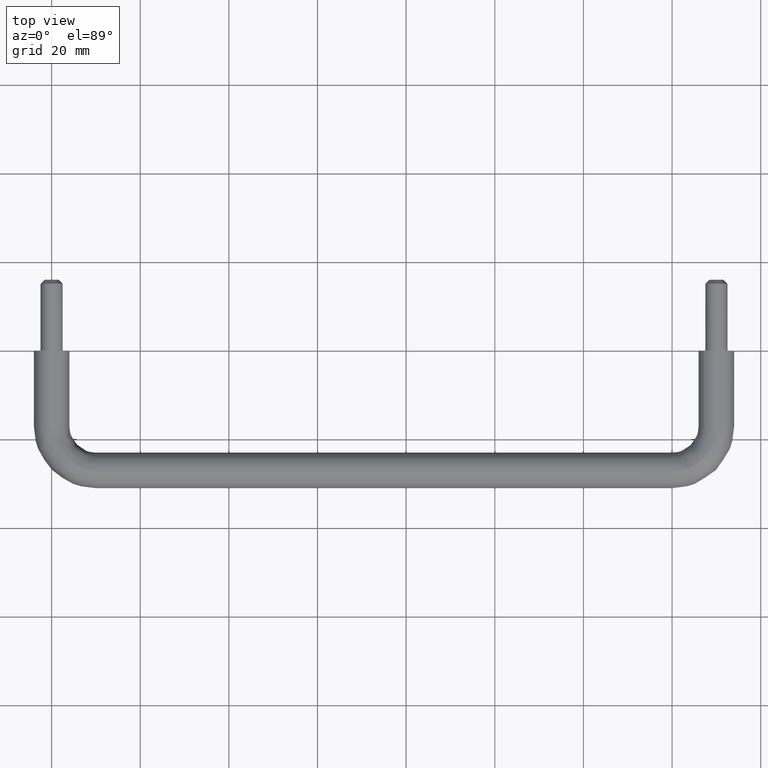
[diagram: clean part render]
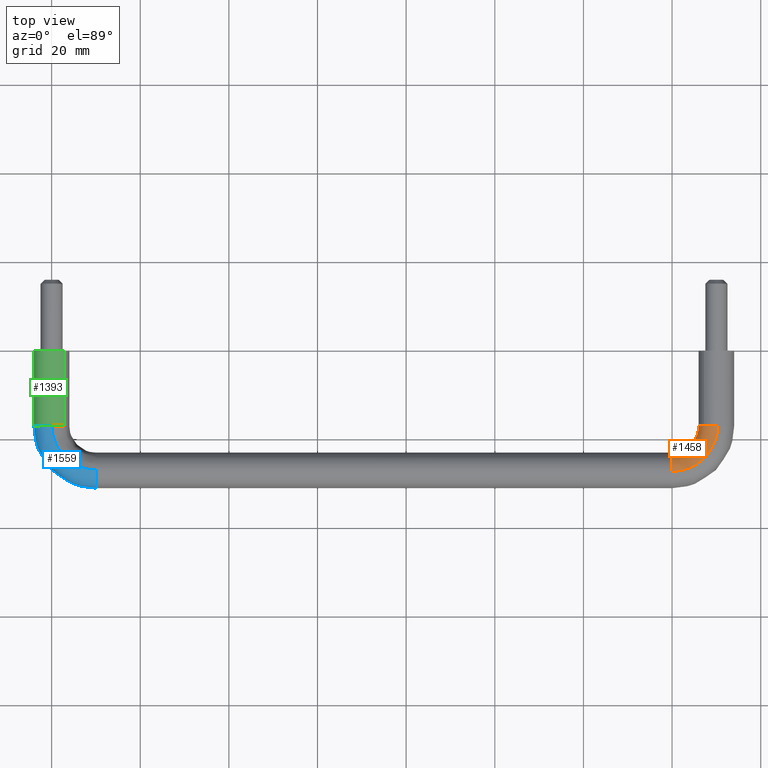
[diagram: same view with three faces highlighted in distinct colors, each labeled with its STEP entity id]
A machine part, top view with three faces highlighted in distinct colors.
Their STEP definitions:

[orange] entity #1458 — the highlighted face is a freeform B-spline surface patch.
#732=CARTESIAN_POINT('',(149.949735840425290,-16.999999999984301,-3.999684176814744));
#733=VERTEX_POINT('',#732);
#749=CARTESIAN_POINT('',(146.0,-17.0,0.0));
#750=VERTEX_POINT('',#749);
#751=CARTESIAN_POINT('',(149.949735840425260,-16.999999999984301,-3.999684176814744));
#752=CARTESIAN_POINT('',(145.999999999999940,-17.0,-3.950047719547630));
#753=CARTESIAN_POINT('',(146.0,-17.0,0.0));
#761=(BOUNDED_CURVE()B_SPLINE_CURVE(2,(#751,#752,#753),.UNSPECIFIED.,.F.,.U.)B_SPLINE_CURVE_WITH_KNOTS((3,3),(0.252215704081906,0.500000000000000),.UNSPECIFIED.)CURVE()GEOMETRIC_REPRESENTATION_ITEM()RATIONAL_B_SPLINE_CURVE((0.994854295635648,0.709702639988498,1.0))REPRESENTATION_ITEM(''));
#762=EDGE_CURVE('',#733,#750,#761,.T.);
#764=CARTESIAN_POINT('',(147.196363281784100,-17.000000000000021,2.853002129734826));
#765=VERTEX_POINT('',#764);
#766=CARTESIAN_POINT('',(146.0,-17.0,0.0));
#767=CARTESIAN_POINT('',(146.000000000000060,-17.000000000000007,1.677339765870804));
#768=CARTESIAN_POINT('',(147.196363281784130,-17.000000000000025,2.853002129734826));
#776=(BOUNDED_CURVE()B_SPLINE_CURVE(2,(#766,#767,#768),.UNSPECIFIED.,.F.,.U.)B_SPLINE_CURVE_WITH_KNOTS((3,3),(0.500000000000000,0.626316793447803),.UNSPECIFIED.)CURVE()GEOMETRIC_REPRESENTATION_ITEM()RATIONAL_B_SPLINE_CURVE((1.0,0.852010671107516,0.853569642136559))REPRESENTATION_ITEM(''));
#777=EDGE_CURVE('',#750,#765,#776,.T.);
#895=CARTESIAN_POINT('',(150.278933189532300,-17.000000005944891,3.990262682553283));
#896=VERTEX_POINT('',#895);
#897=CARTESIAN_POINT('',(147.196363281784100,-17.000000000000021,2.853002129734826));
#898=CARTESIAN_POINT('',(148.363557349100920,-16.999999999999993,4.0));
#899=CARTESIAN_POINT('',(150.0,-17.0,4.0));
#900=CARTESIAN_POINT('',(150.139636647400290,-17.0,4.0));
#901=CARTESIAN_POINT('',(150.278933189532300,-17.000000005944887,3.990262682553283));
#909=(BOUNDED_CURVE()B_SPLINE_CURVE(2,(#897,#898,#899,#900,#901),.UNSPECIFIED.,.F.,.U.)B_SPLINE_CURVE_WITH_KNOTS((3,2,3),(0.626316793447803,0.750000000000000,0.762166329259532),.UNSPECIFIED.)CURVE()GEOMETRIC_REPRESENTATION_ITEM()RATIONAL_B_SPLINE_CURVE((0.853569642136559,0.855096110079032,1.0,0.985746258648125,0.972879842979988))REPRESENTATION_ITEM(''));
#910=EDGE_CURVE('',#765,#896,#909,.T.);
#954=CARTESIAN_POINT('',(140.0,-23.417578029477610,1.779396758769257));
#955=VERTEX_POINT('',#954);
#956=CARTESIAN_POINT('',(140.000000010251710,-27.278933189776939,3.990262682536179));
#957=VERTEX_POINT('',#956);
#958=CARTESIAN_POINT('',(140.000000000000030,-23.417578029477614,1.779396758769256));
#959=CARTESIAN_POINT('',(139.999999999999940,-24.520556473275803,4.0));
#960=CARTESIAN_POINT('',(140.0,-27.0,4.0));
#961=CARTESIAN_POINT('',(139.999999999999970,-27.139636647645887,4.0));
#962=CARTESIAN_POINT('',(140.000000010251650,-27.278933189776939,3.990262682536178));
#970=(BOUNDED_CURVE()B_SPLINE_CURVE(2,(#958,#959,#960,#961,#962),.UNSPECIFIED.,.F.,.U.)B_SPLINE_CURVE_WITH_KNOTS((3,2,3),(0.575619190626044,0.750000000000000,0.762166329280624),.UNSPECIFIED.)CURVE()GEOMETRIC_REPRESENTATION_ITEM()RATIONAL_B_SPLINE_CURVE((0.876408099965181,0.795700173772668,1.0,0.985746258623414,0.972879842935376))REPRESENTATION_ITEM(''));
#971=EDGE_CURVE('',#955,#957,#970,.T.);
#1044=CARTESIAN_POINT('',(140.000000000115700,-24.246582932973361,-2.901498656702296));
#1045=VERTEX_POINT('',#1044);
#1051=CARTESIAN_POINT('',(140.000000000366700,-26.949735840281949,-3.999684176812943));
#1052=VERTEX_POINT('',#1051);
#1053=CARTESIAN_POINT('',(140.000000000366700,-26.949735840281949,-3.999684176812943));
#1054=CARTESIAN_POINT('',(140.000000000221290,-25.383082967628233,-3.979995999691451));
#1055=CARTESIAN_POINT('',(140.000000000115760,-24.246582932973364,-2.901498656702296));
#1063=(BOUNDED_CURVE()B_SPLINE_CURVE(2,(#1053,#1054,#1055),.UNSPECIFIED.,.F.,.U.)B_SPLINE_CURVE_WITH_KNOTS((3,3),(0.252215704094509,0.371049462387032),.UNSPECIFIED.)CURVE()GEOMETRIC_REPRESENTATION_ITEM()RATIONAL_B_SPLINE_CURVE((0.994854295606640,0.858099693000149,0.853699666128967))REPRESENTATION_ITEM(''));
#1064=EDGE_CURVE('',#1052,#1045,#1063,.T.);
#1113=CARTESIAN_POINT('',(140.0,-23.0,0.0));
#1114=VERTEX_POINT('',#1113);
#1115=CARTESIAN_POINT('',(140.0,-23.0,0.0));
#1116=CARTESIAN_POINT('',(140.000000000000030,-23.000000000000004,0.938695717929676));
#1117=CARTESIAN_POINT('',(139.999999999999940,-23.417578029477614,1.779396758769257));
#1125=(BOUNDED_CURVE()B_SPLINE_CURVE(2,(#1115,#1116,#1117),.UNSPECIFIED.,.F.,.U.)B_SPLINE_CURVE_WITH_KNOTS((3,3),(0.500000000000000,0.575619190626044),.UNSPECIFIED.)CURVE()GEOMETRIC_REPRESENTATION_ITEM()RATIONAL_B_SPLINE_CURVE((1.0,0.911406607413880,0.876408099965182))REPRESENTATION_ITEM(''));
#1126=EDGE_CURVE('',#1114,#955,#1125,.T.);
#1128=CARTESIAN_POINT('',(140.000000000115760,-24.246582932973364,-2.901498656702296));
#1129=CARTESIAN_POINT('',(139.999999999999970,-23.0,-1.718536632860814));
#1130=CARTESIAN_POINT('',(140.0,-23.0,0.0));
#1138=(BOUNDED_CURVE()B_SPLINE_CURVE(2,(#1128,#1129,#1130),.UNSPECIFIED.,.F.,.U.)B_SPLINE_CURVE_WITH_KNOTS((3,3),(0.371049462387032,0.500000000000000),.UNSPECIFIED.)CURVE()GEOMETRIC_REPRESENTATION_ITEM()RATIONAL_B_SPLINE_CURVE((0.853699666128967,0.848925047883251,1.0))REPRESENTATION_ITEM(''));
#1139=EDGE_CURVE('',#1045,#1114,#1138,.T.);
#1394=CARTESIAN_POINT('',(139.285232849516860,-27.254051255058759,3.990262710755871));
#1395=CARTESIAN_POINT('',(151.075932032510790,-28.075931724309864,3.990262710755869));
#1396=CARTESIAN_POINT('',(150.254051235169560,-16.285232564185716,3.990262710755872));
#1397=CARTESIAN_POINT('',(139.293173950873320,-27.140128195953455,3.998245639552521));
#1398=CARTESIAN_POINT('',(150.952877833911630,-27.952877529134813,3.998245639552521));
#1399=CARTESIAN_POINT('',(150.140128176285170,-16.293173668712253,3.998245639552521));
#1400=CARTESIAN_POINT('',(139.301133802077260,-27.025936151492424,3.999684176815264));
#1401=CARTESIAN_POINT('',(150.829533090293410,-27.829532788948779,3.999684176815264));
#1402=CARTESIAN_POINT('',(150.025936132045560,-16.301133523093657,3.999684176815263));
#1403=CARTESIAN_POINT('',(139.579260230315550,-23.035933744954079,4.049948336348676));
#1404=CARTESIAN_POINT('',(146.519724765259780,-23.519724583840723,4.049948336348674));
#1405=CARTESIAN_POINT('',(146.035933733246510,-16.579260062358539,4.049948336348676));
#1406=CARTESIAN_POINT('',(139.582755454073660,-22.985791256538757,0.050264159533411));
#1407=CARTESIAN_POINT('',(146.465563265593520,-23.465563085681516,0.050264159533411));
#1408=CARTESIAN_POINT('',(145.985791244928520,-16.582755287511844,0.050264159533411));
#1409=CARTESIAN_POINT('',(139.586250677831600,-22.935648768123418,-3.949420017281852));
#1410=CARTESIAN_POINT('',(146.411401765927170,-23.411401587522313,-3.949420017281853));
#1411=CARTESIAN_POINT('',(145.935648756610360,-16.586250512665156,-3.949420017281854));
#1412=CARTESIAN_POINT('',(139.308124249593280,-26.925651174661770,-3.999684176815264));
#1413=CARTESIAN_POINT('',(150.721210090960800,-27.721209792630368,-3.999684176815264));
#1414=CARTESIAN_POINT('',(149.925651155409500,-16.308123973400264,-3.999684176815263));
#1422=(BOUNDED_SURFACE()B_SPLINE_SURFACE(2,2,((#1394,#1397,#1400,#1403,#1406,#1409,#1412),(#1395,#1398,#1401,#1404,#1407,#1410,#1413),(#1396,#1399,#1402,#1405,#1408,#1411,#1414)),.UNSPECIFIED.,.F.,.F.,.U.)B_SPLINE_SURFACE_WITH_KNOTS((3,3),(3,2,2,3),(0.0,18.732059002914639),(0.0,0.265096427102886,6.892513425072401,13.519930423041920),.UNSPECIFIED.)GEOMETRIC_REPRESENTATION_ITEM()RATIONAL_B_SPLINE_SURFACE(((0.895729732449210,0.905606490046838,0.916342095240933,0.647951709431553,0.916342095240933,0.647951709431553,0.916342095240933),(0.587800221482116,0.594281596491894,0.601326568744382,0.425202094466791,0.601326568744382,0.425202094466791,0.601326568744382),(0.895729743804760,0.905606501527600,0.916342106857795,0.647951717645915,0.916342106857795,0.647951717645915,0.916342106857795)))REPRESENTATION_ITEM('')SURFACE());
#1423=ORIENTED_EDGE('',*,*,#910,.F.);
#1424=ORIENTED_EDGE('',*,*,#777,.F.);
#1425=ORIENTED_EDGE('',*,*,#762,.F.);
#1426=CARTESIAN_POINT('',(140.000000000366750,-26.949735840281942,-3.999684176812943));
#1427=CARTESIAN_POINT('',(149.949735840497990,-26.949735839733130,-3.999684176815261));
#1428=CARTESIAN_POINT('',(149.949735840425210,-16.999999999984297,-3.999684176814744));
#1436=(BOUNDED_CURVE()B_SPLINE_CURVE(2,(#1426,#1427,#1428),.UNSPECIFIED.,.F.,.U.)B_SPLINE_CURVE_WITH_KNOTS((3,3),(-1.734750791581804,-0.265249208338318),.UNSPECIFIED.)CURVE()GEOMETRIC_REPRESENTATION_ITEM()RATIONAL_B_SPLINE_CURVE((0.889029723549296,0.628638946230295,0.889029723577604))REPRESENTATION_ITEM(''));
#1437=EDGE_CURVE('',#1052,#733,#1436,.T.);
#1438=ORIENTED_EDGE('',*,*,#1437,.F.);
#1439=ORIENTED_EDGE('',*,*,#1064,.T.);
#1440=ORIENTED_EDGE('',*,*,#1139,.T.);
#1441=ORIENTED_EDGE('',*,*,#1126,.T.);
#1442=ORIENTED_EDGE('',*,*,#971,.T.);
#1443=CARTESIAN_POINT('',(140.000000010251630,-27.278933189776939,3.990262682536179));
#1444=CARTESIAN_POINT('',(150.278932994411950,-27.278932985798466,3.990262695361730));
#1445=CARTESIAN_POINT('',(150.278933189532300,-17.000000005944887,3.990262682553283));
#1453=(BOUNDED_CURVE()B_SPLINE_CURVE(2,(#1443,#1444,#1445),.UNSPECIFIED.,.F.,.U.)B_SPLINE_CURVE_WITH_KNOTS((3,3),(-1.734750789585729,-0.265249209543533),.UNSPECIFIED.)CURVE()GEOMETRIC_REPRESENTATION_ITEM()RATIONAL_B_SPLINE_CURVE((0.869031711157241,0.614498217100348,0.869031711458884))REPRESENTATION_ITEM(''));
#1454=EDGE_CURVE('',#957,#896,#1453,.T.);
#1455=ORIENTED_EDGE('',*,*,#1454,.T.);
#1456=EDGE_LOOP('',(#1423,#1424,#1425,#1438,#1439,#1440,#1441,#1442,#1455));
#1457=FACE_OUTER_BOUND('',#1456,.T.);
#1458=ADVANCED_FACE('',(#1457),#1422,.T.);

[blue] entity #1559 — the highlighted face is a freeform B-spline surface patch.
#980=CARTESIAN_POINT('',(9.999999998914040,-26.949735839024481,3.999684176797141));
#981=VERTEX_POINT('',#980);
#995=CARTESIAN_POINT('',(10.0,-31.0,0.0));
#996=VERTEX_POINT('',#995);
#997=CARTESIAN_POINT('',(9.999999998914040,-26.949735839024481,3.999684176797141));
#998=CARTESIAN_POINT('',(10.0,-26.974866926590163,4.0));
#999=CARTESIAN_POINT('',(10.0,-27.0,4.0));
#1000=CARTESIAN_POINT('',(10.000000000000002,-31.000000000000007,4.000000000000000));
#1001=CARTESIAN_POINT('',(10.0,-31.0,0.0));
#1009=(BOUNDED_CURVE()B_SPLINE_CURVE(2,(#997,#998,#999,#1000,#1001),.UNSPECIFIED.,.F.,.U.)B_SPLINE_CURVE_WITH_KNOTS((3,2,3),(0.747784295794909,0.750000000000000,1.0),.UNSPECIFIED.)CURVE()GEOMETRIC_REPRESENTATION_ITEM()RATIONAL_B_SPLINE_CURVE((0.994854295352123,0.997404141053729,1.0,0.707106781186548,1.0))REPRESENTATION_ITEM(''));
#1010=EDGE_CURVE('',#981,#996,#1009,.T.);
#1012=CARTESIAN_POINT('',(9.999999999857518,-27.278933006948471,-3.990262695316522));
#1013=VERTEX_POINT('',#1012);
#1014=CARTESIAN_POINT('',(10.0,-31.0,0.0));
#1015=CARTESIAN_POINT('',(10.0,-31.000000000000011,-3.730147387854432));
#1016=CARTESIAN_POINT('',(9.999999999857518,-27.278933006948474,-3.990262695316523));
#1024=(BOUNDED_CURVE()B_SPLINE_CURVE(2,(#1014,#1015,#1016),.UNSPECIFIED.,.F.,.U.)B_SPLINE_CURVE_WITH_KNOTS((3,3),(0.0,0.237833686479388),.UNSPECIFIED.)CURVE()GEOMETRIC_REPRESENTATION_ITEM()RATIONAL_B_SPLINE_CURVE((1.0,0.721360504099130,0.972879876269158))REPRESENTATION_ITEM(''));
#1025=EDGE_CURVE('',#996,#1013,#1024,.T.);
#1295=CARTESIAN_POINT('',(-0.278933014776129,-17.000000002691571,-3.990262694769342));
#1296=VERTEX_POINT('',#1295);
#1312=CARTESIAN_POINT('',(-3.999999999999998,-17.0,0.0));
#1313=VERTEX_POINT('',#1312);
#1314=CARTESIAN_POINT('',(-3.999999999999998,-17.0,0.0));
#1315=CARTESIAN_POINT('',(-3.999999999999998,-17.0,-3.730147373183934));
#1316=CARTESIAN_POINT('',(-0.278933014776130,-17.000000002691568,-3.990262694769342));
#1324=(BOUNDED_CURVE()B_SPLINE_CURVE(2,(#1314,#1315,#1316),.UNSPECIFIED.,.F.,.U.)B_SPLINE_CURVE_WITH_KNOTS((3,3),(0.0,0.237833685804635),.UNSPECIFIED.)CURVE()GEOMETRIC_REPRESENTATION_ITEM()RATIONAL_B_SPLINE_CURVE((1.0,0.721360504889652,0.972879874841998))REPRESENTATION_ITEM(''));
#1325=EDGE_CURVE('',#1313,#1296,#1324,.T.);
#1327=CARTESIAN_POINT('',(0.050264162320149,-17.000000001836110,3.999684176780243));
#1328=VERTEX_POINT('',#1327);
#1329=CARTESIAN_POINT('',(0.050264162320149,-17.000000001836106,3.999684176780244));
#1330=CARTESIAN_POINT('',(0.025133074754626,-17.000000000000004,4.000000000000001));
#1331=CARTESIAN_POINT('',(2.081831E-015,-17.0,4.0));
#1332=CARTESIAN_POINT('',(-3.999999999999998,-17.000000000000004,4.000000000000000));
#1333=CARTESIAN_POINT('',(-3.999999999999998,-17.0,0.0));
#1341=(BOUNDED_CURVE()B_SPLINE_CURVE(2,(#1329,#1330,#1331,#1332,#1333),.UNSPECIFIED.,.F.,.U.)B_SPLINE_CURVE_WITH_KNOTS((3,2,3),(0.747784295676661,0.750000000000000,1.0),.UNSPECIFIED.)CURVE()GEOMETRIC_REPRESENTATION_ITEM()RATIONAL_B_SPLINE_CURVE((0.994854295079964,0.997404140915194,1.0,0.707106781186548,1.0))REPRESENTATION_ITEM(''));
#1342=EDGE_CURVE('',#1328,#1313,#1341,.T.);
#1498=CARTESIAN_POINT('',(-0.196834659788702,-16.293047997121359,-3.994290603419821));
#1499=CARTESIAN_POINT('',(-1.009730562951050,-28.017981353861458,-3.994290603419821));
#1500=CARTESIAN_POINT('',(10.714590540593354,-27.196302200932298,-3.994290603419820));
#1501=CARTESIAN_POINT('',(-0.225496889636992,-16.291060829389970,-3.992282205975329));
#1502=CARTESIAN_POINT('',(-1.040677757692520,-28.048951740708468,-3.992282205975329));
#1503=CARTESIAN_POINT('',(10.716599179450929,-27.224962934094744,-3.992282205975329));
#1504=CARTESIAN_POINT('',(-4.013512147630050,-16.028435704738925,-3.726851351358788));
#1505=CARTESIAN_POINT('',(-5.130675168684697,-32.142014232473429,-3.726851351358789));
#1506=CARTESIAN_POINT('',(10.982061939346378,-31.012780389304915,-3.726851351358789));
#1507=CARTESIAN_POINT('',(-3.966158686725386,-16.031718745520379,0.050264159533410));
#1508=CARTESIAN_POINT('',(-5.079546670167449,-32.090847417800461,0.050264159533410));
#1509=CARTESIAN_POINT('',(10.978743425674653,-30.965429401105794,0.050264159533410));
#1510=CARTESIAN_POINT('',(-3.916014896377526,-16.035195241335110,4.049948336348672));
#1511=CARTESIAN_POINT('',(-5.025405395982419,-32.036665569658567,4.049948336348672));
#1512=CARTESIAN_POINT('',(10.975229366709534,-30.915288229169061,4.049948336348674));
#1513=CARTESIAN_POINT('',(0.102319963292578,-16.313788547205178,3.999328572321735));
#1514=CARTESIAN_POINT('',(-0.686727208804841,-27.694735938102298,3.999328572321735));
#1515=CARTESIAN_POINT('',(10.693625891174090,-26.897163199123092,3.999328572321734));
#1516=CARTESIAN_POINT('',(0.130383854753217,-16.315734231815995,3.998975045895236));
#1517=CARTESIAN_POINT('',(-0.656426052236323,-27.664412073575054,3.998975045895236));
#1518=CARTESIAN_POINT('',(10.691659183657583,-26.869100773104233,3.998975045895237));
#1526=(BOUNDED_SURFACE()B_SPLINE_SURFACE(2,2,((#1498,#1501,#1504,#1507,#1510,#1513,#1516),(#1499,#1502,#1505,#1508,#1511,#1514,#1517),(#1500,#1503,#1506,#1509,#1512,#1515,#1518)),.UNSPECIFIED.,.F.,.F.,.U.)B_SPLINE_SURFACE_WITH_KNOTS((3,3),(3,1,2,1,3),(0.0,25.512457512980429),(0.0,0.066515791563473,6.428836109614211,13.056253107583730,13.122756324466820),.UNSPECIFIED.)GEOMETRIC_REPRESENTATION_ITEM()RATIONAL_B_SPLINE_SURFACE(((0.905744057554832,0.903251947136346,0.662386295974072,0.921487970695580,0.651590392860676,0.924196274271540,0.926904577847499),(0.591078802383255,0.589452478004663,0.432266152092013,0.601353110281207,0.425220862167464,0.603120519982454,0.604887929683700),(0.895737652983719,0.893273074697379,0.655068439230114,0.911307631818076,0.644391806205615,0.913986014820937,0.916664397823798)))REPRESENTATION_ITEM('')SURFACE());
#1527=ORIENTED_EDGE('',*,*,#1025,.F.);
#1528=ORIENTED_EDGE('',*,*,#1010,.F.);
#1529=CARTESIAN_POINT('',(0.050264162320149,-17.000000001836110,3.999684176780243));
#1530=CARTESIAN_POINT('',(0.050264163205631,-26.949735838294675,3.999684176815264));
#1531=CARTESIAN_POINT('',(9.999999998914040,-26.949735839024481,3.999684176797140));
#1539=(BOUNDED_CURVE()B_SPLINE_CURVE(2,(#1529,#1530,#1531),.UNSPECIFIED.,.F.,.U.)B_SPLINE_CURVE_WITH_KNOTS((3,3),(-1.747842683283714,-0.278273131171982),.UNSPECIFIED.)CURVE()GEOMETRIC_REPRESENTATION_ITEM()RATIONAL_B_SPLINE_CURVE((0.893710737825023,0.628668022997302,0.884455039376678))REPRESENTATION_ITEM(''));
#1540=EDGE_CURVE('',#1328,#981,#1539,.T.);
#1541=ORIENTED_EDGE('',*,*,#1540,.F.);
#1542=ORIENTED_EDGE('',*,*,#1342,.T.);
#1543=ORIENTED_EDGE('',*,*,#1325,.T.);
#1544=CARTESIAN_POINT('',(-0.278933014776130,-17.000000002691564,-3.990262694769342));
#1545=CARTESIAN_POINT('',(-0.278933000918627,-27.278933006016807,-3.990262695361730));
#1546=CARTESIAN_POINT('',(9.999999999857518,-27.278933006948471,-3.990262695316523));
#1554=(BOUNDED_CURVE()B_SPLINE_CURVE(2,(#1544,#1545,#1546),.UNSPECIFIED.,.F.,.U.)B_SPLINE_CURVE_WITH_KNOTS((3,3),(-1.747842683122194,-0.278273130974985),.UNSPECIFIED.)CURVE()GEOMETRIC_REPRESENTATION_ITEM()RATIONAL_B_SPLINE_CURVE((0.873607430399901,0.614526639247018,0.864559931600220))REPRESENTATION_ITEM(''));
#1555=EDGE_CURVE('',#1296,#1013,#1554,.T.);
#1556=ORIENTED_EDGE('',*,*,#1555,.T.);
#1557=EDGE_LOOP('',(#1527,#1528,#1541,#1542,#1543,#1556));
#1558=FACE_OUTER_BOUND('',#1557,.T.);
#1559=ADVANCED_FACE('',(#1558),#1526,.T.);

[green] entity #1393 — the highlighted face is a freeform B-spline surface patch.
#1196=CARTESIAN_POINT('',(1.936875758742529,-17.0,-3.499787464287286));
#1197=VERTEX_POINT('',#1196);
#1213=CARTESIAN_POINT('',(1.936878929040470,0.0,-3.499785709759819));
#1214=VERTEX_POINT('',#1213);
#1215=CARTESIAN_POINT('',(1.936878929040470,0.0,-3.499785709759819));
#1216=CARTESIAN_POINT('',(1.936875758742529,-17.0,-3.499787464287286));
#1217=QUASI_UNIFORM_CURVE('',1,(#1215,#1216),.UNSPECIFIED.,.F.,.U.);
#1218=EDGE_CURVE('',#1214,#1197,#1217,.T.);
#1235=CARTESIAN_POINT('',(2.949110740387567,5.551115E-017,2.702359310107826));
#1236=VERTEX_POINT('',#1235);
#1250=CARTESIAN_POINT('',(2.949110422968060,-17.000000000488470,2.702359656111148));
#1251=VERTEX_POINT('',#1250);
#1252=CARTESIAN_POINT('',(2.949110740387567,5.551115E-017,2.702359310107826));
#1253=CARTESIAN_POINT('',(2.949110422968060,-17.000000000488470,2.702359656111148));
#1254=QUASI_UNIFORM_CURVE('',1,(#1252,#1253),.UNSPECIFIED.,.F.,.U.);
#1255=EDGE_CURVE('',#1236,#1251,#1254,.T.);
#1273=CARTESIAN_POINT('',(2.949109347240495,0.425000000067290,2.702360830462641));
#1274=CARTESIAN_POINT('',(0.246748516777854,0.425000000067290,5.651470177703135));
#1275=CARTESIAN_POINT('',(-2.702360830462641,0.425000000067290,2.949109347240495));
#1276=CARTESIAN_POINT('',(-5.651470177703135,0.425000000067289,0.246748516777854));
#1277=CARTESIAN_POINT('',(-2.949109347240495,0.425000000067290,-2.702360830462641));
#1278=CARTESIAN_POINT('',(-0.820216833946429,0.425000000067290,-5.025639328083180));
#1279=CARTESIAN_POINT('',(1.936878929017517,0.425000000067290,-3.499785709772521));
#1280=CARTESIAN_POINT('',(2.949109347240497,-17.435625002760538,2.702360830462641));
#1281=CARTESIAN_POINT('',(0.246748516777857,-17.435625002760535,5.651470177703135));
#1282=CARTESIAN_POINT('',(-2.702360830462638,-17.435625002760538,2.949109347240495));
#1283=CARTESIAN_POINT('',(-5.651470177703134,-17.435625002760535,0.246748516777854));
#1284=CARTESIAN_POINT('',(-2.949109347240493,-17.435625002760538,-2.702360830462641));
#1285=CARTESIAN_POINT('',(-0.820216833946427,-17.435625002760538,-5.025639328083180));
#1286=CARTESIAN_POINT('',(1.936878929017520,-17.435625002760542,-3.499785709772521));
#1294=(BOUNDED_SURFACE()B_SPLINE_SURFACE(2,1,((#1273,#1280),(#1274,#1281),(#1275,#1282),(#1276,#1283),(#1277,#1284),(#1278,#1285),(#1279,#1286)),.UNSPECIFIED.,.F.,.F.,.U.)B_SPLINE_SURFACE_WITH_KNOTS((3,2,2,3),(2,2),(0.0,6.627416997969519,13.254833995939039,18.821864274233430),(0.0,17.860625002827831),.UNSPECIFIED.)GEOMETRIC_REPRESENTATION_ITEM()RATIONAL_B_SPLINE_SURFACE(((1.0,1.0),(0.707106781186548,0.707106781186548),(1.0,1.0),(0.707106781186548,0.707106781186548),(1.0,1.0),(0.753969696196700,0.753969696196700),(0.921270302782944,0.921270302782944)))REPRESENTATION_ITEM('')SURFACE());
#1295=CARTESIAN_POINT('',(-0.278933014776129,-17.000000002691571,-3.990262694769342));
#1296=VERTEX_POINT('',#1295);
#1297=CARTESIAN_POINT('',(-0.278933014776130,-17.000000002691571,-3.990262694769342));
#1298=CARTESIAN_POINT('',(-0.139636472004241,-17.000000000000004,-4.000000000000001));
#1299=CARTESIAN_POINT('',(2.081831E-015,-17.0,-4.0));
#1300=CARTESIAN_POINT('',(1.033029678756113,-16.999999999999996,-4.0));
#1301=CARTESIAN_POINT('',(1.936875758742530,-16.999999999999993,-3.499787464287285));
#1309=(BOUNDED_CURVE()B_SPLINE_CURVE(2,(#1297,#1298,#1299,#1300,#1301),.UNSPECIFIED.,.F.,.U.)B_SPLINE_CURVE_WITH_KNOTS((3,2,3),(0.237833685804635,0.250000000000000,0.332484149575816),.UNSPECIFIED.)CURVE()GEOMETRIC_REPRESENTATION_ITEM()RATIONAL_B_SPLINE_CURVE((0.972879874841997,0.985746276296895,1.0,0.903363807718596,0.870495248545805))REPRESENTATION_ITEM(''));
#1310=EDGE_CURVE('',#1296,#1197,#1309,.T.);
#1311=ORIENTED_EDGE('',*,*,#1310,.F.);
#1312=CARTESIAN_POINT('',(-3.999999999999998,-17.0,0.0));
#1313=VERTEX_POINT('',#1312);
#1314=CARTESIAN_POINT('',(-3.999999999999998,-17.0,0.0));
#1315=CARTESIAN_POINT('',(-3.999999999999998,-17.0,-3.730147373183934));
#1316=CARTESIAN_POINT('',(-0.278933014776130,-17.000000002691568,-3.990262694769342));
#1324=(BOUNDED_CURVE()B_SPLINE_CURVE(2,(#1314,#1315,#1316),.UNSPECIFIED.,.F.,.U.)B_SPLINE_CURVE_WITH_KNOTS((3,3),(0.0,0.237833685804635),.UNSPECIFIED.)CURVE()GEOMETRIC_REPRESENTATION_ITEM()RATIONAL_B_SPLINE_CURVE((1.0,0.721360504889652,0.972879874841998))REPRESENTATION_ITEM(''));
#1325=EDGE_CURVE('',#1313,#1296,#1324,.T.);
#1326=ORIENTED_EDGE('',*,*,#1325,.F.);
#1327=CARTESIAN_POINT('',(0.050264162320149,-17.000000001836110,3.999684176780243));
#1328=VERTEX_POINT('',#1327);
#1329=CARTESIAN_POINT('',(0.050264162320149,-17.000000001836106,3.999684176780244));
#1330=CARTESIAN_POINT('',(0.025133074754626,-17.000000000000004,4.000000000000001));
#1331=CARTESIAN_POINT('',(2.081831E-015,-17.0,4.0));
#1332=CARTESIAN_POINT('',(-3.999999999999998,-17.000000000000004,4.000000000000000));
#1333=CARTESIAN_POINT('',(-3.999999999999998,-17.0,0.0));
#1341=(BOUNDED_CURVE()B_SPLINE_CURVE(2,(#1329,#1330,#1331,#1332,#1333),.UNSPECIFIED.,.F.,.U.)B_SPLINE_CURVE_WITH_KNOTS((3,2,3),(0.747784295676661,0.750000000000000,1.0),.UNSPECIFIED.)CURVE()GEOMETRIC_REPRESENTATION_ITEM()RATIONAL_B_SPLINE_CURVE((0.994854295079964,0.997404140915194,1.0,0.707106781186548,1.0))REPRESENTATION_ITEM(''));
#1342=EDGE_CURVE('',#1328,#1313,#1341,.T.);
#1343=ORIENTED_EDGE('',*,*,#1342,.F.);
#1344=CARTESIAN_POINT('',(2.949110422968061,-17.000000000488473,2.702359656111148));
#1345=CARTESIAN_POINT('',(1.780254268058497,-17.000000001031889,3.977943333137210));
#1346=CARTESIAN_POINT('',(0.050264162320149,-17.000000001836113,3.999684176780243));
#1354=(BOUNDED_CURVE()B_SPLINE_CURVE(2,(#1344,#1345,#1346),.UNSPECIFIED.,.F.,.U.)B_SPLINE_CURVE_WITH_KNOTS((3,3),(0.618415148961099,0.747784295676661),.UNSPECIFIED.)CURVE()GEOMETRIC_REPRESENTATION_ITEM()RATIONAL_B_SPLINE_CURVE((0.853959788259148,0.845975504491642,0.994854295079962))REPRESENTATION_ITEM(''));
#1355=EDGE_CURVE('',#1251,#1328,#1354,.T.);
#1356=ORIENTED_EDGE('',*,*,#1355,.F.);
#1357=ORIENTED_EDGE('',*,*,#1255,.F.);
#1358=CARTESIAN_POINT('',(-4.0,0.0,0.0));
#1359=VERTEX_POINT('',#1358);
#1360=CARTESIAN_POINT('',(2.949110740387567,5.551115E-017,2.702359310107826));
#1361=CARTESIAN_POINT('',(1.760043354250046,0.0,4.0));
#1362=CARTESIAN_POINT('',(0.0,0.0,4.0));
#1363=CARTESIAN_POINT('',(-4.000000000000000,0.0,4.000000000000000));
#1364=CARTESIAN_POINT('',(-4.0,0.0,0.0));
#1372=(BOUNDED_CURVE()B_SPLINE_CURVE(2,(#1360,#1361,#1362,#1363,#1364),.UNSPECIFIED.,.F.,.U.)B_SPLINE_CURVE_WITH_KNOTS((3,2,3),(0.618415131259578,0.750000000000000,1.0),.UNSPECIFIED.)CURVE()GEOMETRIC_REPRESENTATION_ITEM()RATIONAL_B_SPLINE_CURVE((0.853959790444123,0.845838736989889,1.0,0.707106781186548,1.0))REPRESENTATION_ITEM(''));
#1373=EDGE_CURVE('',#1236,#1359,#1372,.T.);
#1374=ORIENTED_EDGE('',*,*,#1373,.T.);
#1375=CARTESIAN_POINT('',(-4.0,0.0,0.0));
#1376=CARTESIAN_POINT('',(-4.000000000000000,0.0,-4.000000000000000));
#1377=CARTESIAN_POINT('',(0.0,0.0,-4.0));
#1378=CARTESIAN_POINT('',(1.033031611314525,0.0,-4.0));
#1379=CARTESIAN_POINT('',(1.936878929040471,0.0,-3.499785709759819));
#1387=(BOUNDED_CURVE()B_SPLINE_CURVE(2,(#1375,#1376,#1377,#1378,#1379),.UNSPECIFIED.,.F.,.U.)B_SPLINE_CURVE_WITH_KNOTS((3,2,3),(0.0,0.250000000000000,0.332484288972660),.UNSPECIFIED.)CURVE()GEOMETRIC_REPRESENTATION_ITEM()RATIONAL_B_SPLINE_CURVE((1.0,0.707106781186548,1.0,0.903363644405035,0.870495137451348))REPRESENTATION_ITEM(''));
#1388=EDGE_CURVE('',#1359,#1214,#1387,.T.);
#1389=ORIENTED_EDGE('',*,*,#1388,.T.);
#1390=ORIENTED_EDGE('',*,*,#1218,.T.);
#1391=EDGE_LOOP('',(#1311,#1326,#1343,#1356,#1357,#1374,#1389,#1390));
#1392=FACE_OUTER_BOUND('',#1391,.T.);
#1393=ADVANCED_FACE('',(#1392),#1294,.T.);